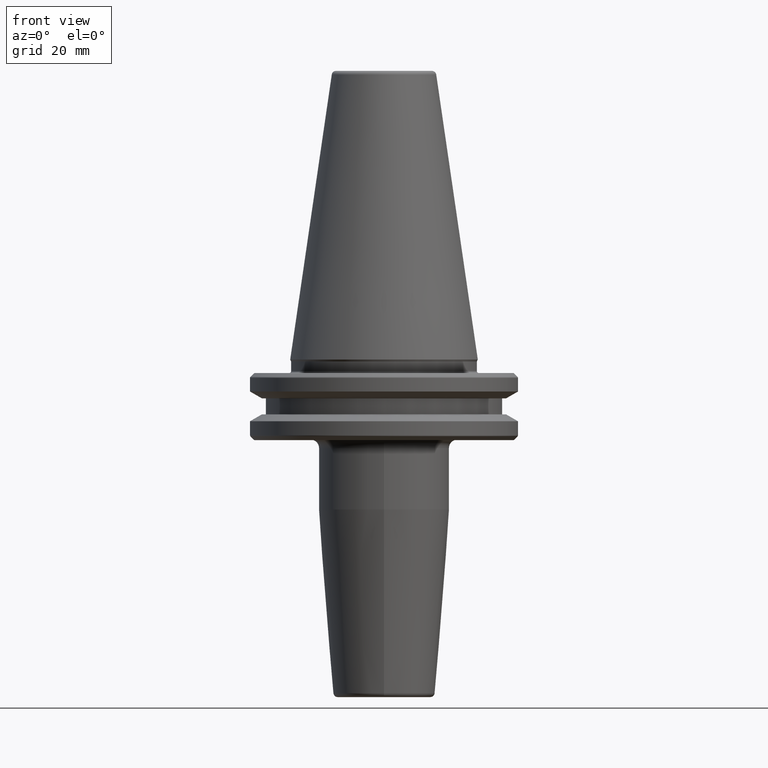
[diagram: clean part render]
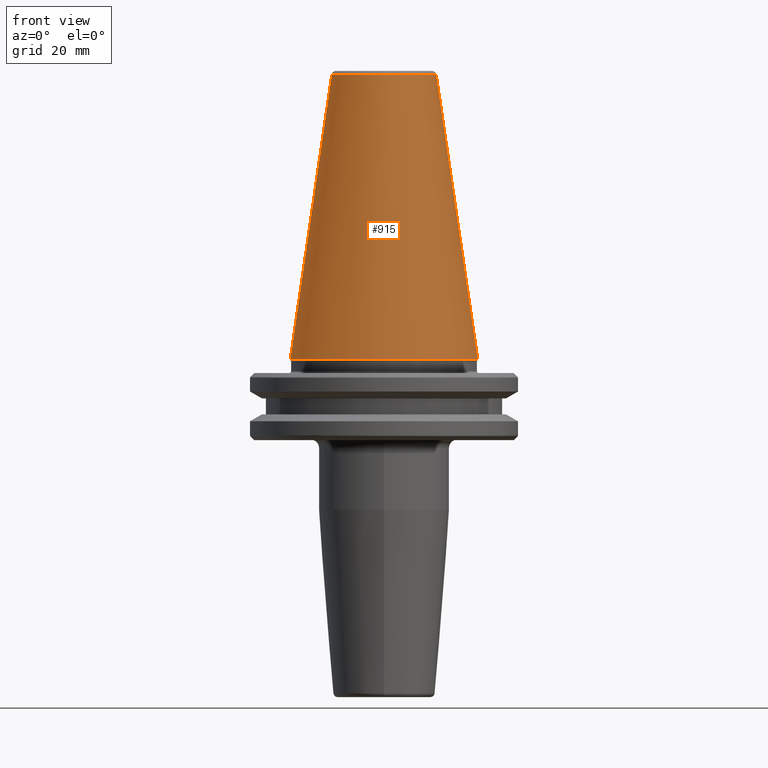
[diagram: same view with one face highlighted and labeled with its STEP entity id]
A machine part, front view. The second image highlights one B-rep face of the part: STEP entity #915.
In plain terms, the highlighted conical surface has half-angle 8.297 deg.
Its self-contained STEP definition (entity closure, byte-faithful):
#31 = DIRECTION ( 'NONE',  ( 1.000000000000000000, 0.0000000000000000000, 0.0000000000000000000 ) ) ;
#41 = LINE ( 'NONE', #1185, #555 ) ;
#46 = AXIS2_PLACEMENT_3D ( 'NONE', #1062, #507, #1248 ) ;
#49 = EDGE_CURVE ( 'NONE', #655, #251, #491, .T. ) ;
#65 = ORIENTED_EDGE ( 'NONE', *, *, #719, .T. ) ;
#78 = VERTEX_POINT ( 'NONE', #336 ) ;
#144 = DIRECTION ( 'NONE',  ( 0.1443082272673071000, 1.767266086135364600E-017, -0.9895327864921743500 ) ) ;
#251 = VERTEX_POINT ( 'NONE', #889 ) ;
#325 = CARTESIAN_POINT ( 'NONE',  ( 0.0000000000000000000, 0.0000000000000000000, 0.0000000000000000000 ) ) ;
#336 = CARTESIAN_POINT ( 'NONE',  ( 22.22500000000000500, 0.0000000000000000000, 0.0000000000000000000 ) ) ;
#364 = EDGE_CURVE ( 'NONE', #251, #78, #1050, .T. ) ;
#436 = DIRECTION ( 'NONE',  ( 1.000000000000000000, 0.0000000000000000000, 0.0000000000000000000 ) ) ;
#491 = CIRCLE ( 'NONE', #872, 12.37469537611110800 ) ;
#498 = AXIS2_PLACEMENT_3D ( 'NONE', #325, #1004, #436 ) ;
#507 = DIRECTION ( 'NONE',  ( 0.0000000000000000000, 0.0000000000000000000, -1.000000000000000000 ) ) ;
#518 = VECTOR ( 'NONE', #144, 1000.000000000000000 ) ;
#555 = VECTOR ( 'NONE', #798, 1000.000000000000000 ) ;
#596 = FACE_OUTER_BOUND ( 'NONE', #610, .T. ) ;
#610 = EDGE_LOOP ( 'NONE', ( #1076, #678, #65, #1226 ) ) ;
#638 = CIRCLE ( 'NONE', #498, 22.22500000000000500 ) ;
#651 = CARTESIAN_POINT ( 'NONE',  ( 12.37469537611110800, 1.515463108277802100E-015, 67.54430822726729400 ) ) ;
#652 = CARTESIAN_POINT ( 'NONE',  ( -12.37469537611110800, 0.0000000000000000000, 67.54430822726729400 ) ) ;
#655 = VERTEX_POINT ( 'NONE', #652 ) ;
#678 = ORIENTED_EDGE ( 'NONE', *, *, #49, .F. ) ;
#719 = EDGE_CURVE ( 'NONE', #655, #815, #41, .T. ) ;
#798 = DIRECTION ( 'NONE',  ( -0.1443082272673071000, 0.0000000000000000000, -0.9895327864921743500 ) ) ;
#815 = VERTEX_POINT ( 'NONE', #1237 ) ;
#872 = AXIS2_PLACEMENT_3D ( 'NONE', #1022, #1199, #31 ) ;
#889 = CARTESIAN_POINT ( 'NONE',  ( 12.37469537611110800, 2.118620309691397700E-015, 67.54430822726729400 ) ) ;
#915 = ADVANCED_FACE ( 'NONE', ( #596 ), #1033, .T. ) ;
#1004 = DIRECTION ( 'NONE',  ( -0.0000000000000000000, -0.0000000000000000000, 1.000000000000000000 ) ) ;
#1022 = CARTESIAN_POINT ( 'NONE',  ( 0.0000000000000000000, 0.0000000000000000000, 67.54430822726729400 ) ) ;
#1033 = CONICAL_SURFACE ( 'NONE', #46, 12.37469537611110800, 0.1448138465474191100 ) ;
#1050 = LINE ( 'NONE', #651, #518 ) ;
#1062 = CARTESIAN_POINT ( 'NONE',  ( 0.0000000000000000000, 0.0000000000000000000, 67.54430822726729400 ) ) ;
#1076 = ORIENTED_EDGE ( 'NONE', *, *, #364, .F. ) ;
#1150 = EDGE_CURVE ( 'NONE', #815, #78, #638, .T. ) ;
#1185 = CARTESIAN_POINT ( 'NONE',  ( -12.37469537611110800, 0.0000000000000000000, 67.54430822726729400 ) ) ;
#1199 = DIRECTION ( 'NONE',  ( -0.0000000000000000000, -0.0000000000000000000, 1.000000000000000000 ) ) ;
#1226 = ORIENTED_EDGE ( 'NONE', *, *, #1150, .T. ) ;
#1237 = CARTESIAN_POINT ( 'NONE',  ( -22.22500000000000500, 2.721777511104993200E-015, 0.0000000000000000000 ) ) ;
#1248 = DIRECTION ( 'NONE',  ( -1.000000000000000000, 0.0000000000000000000, 0.0000000000000000000 ) ) ;